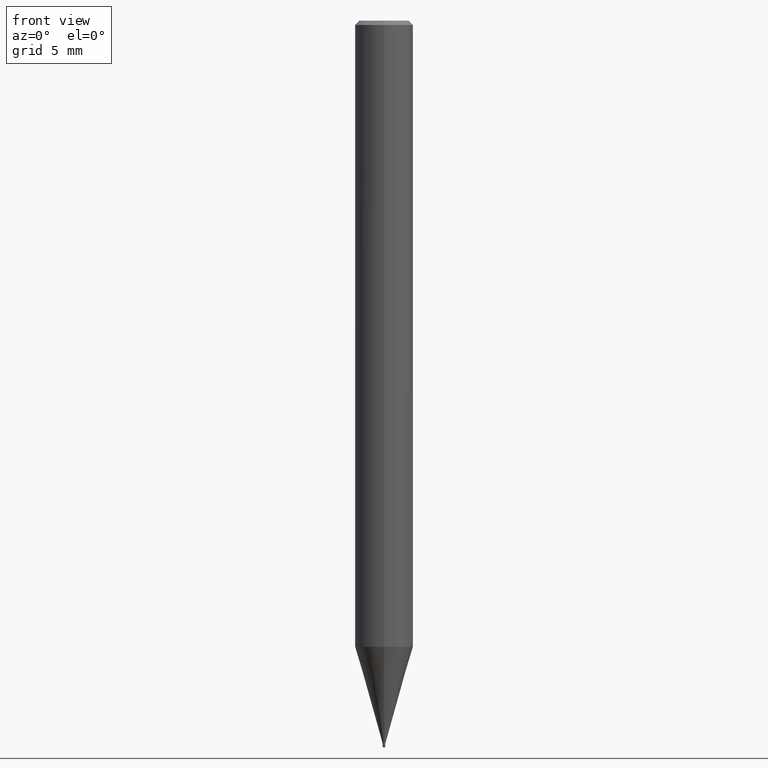
[diagram: clean part render]
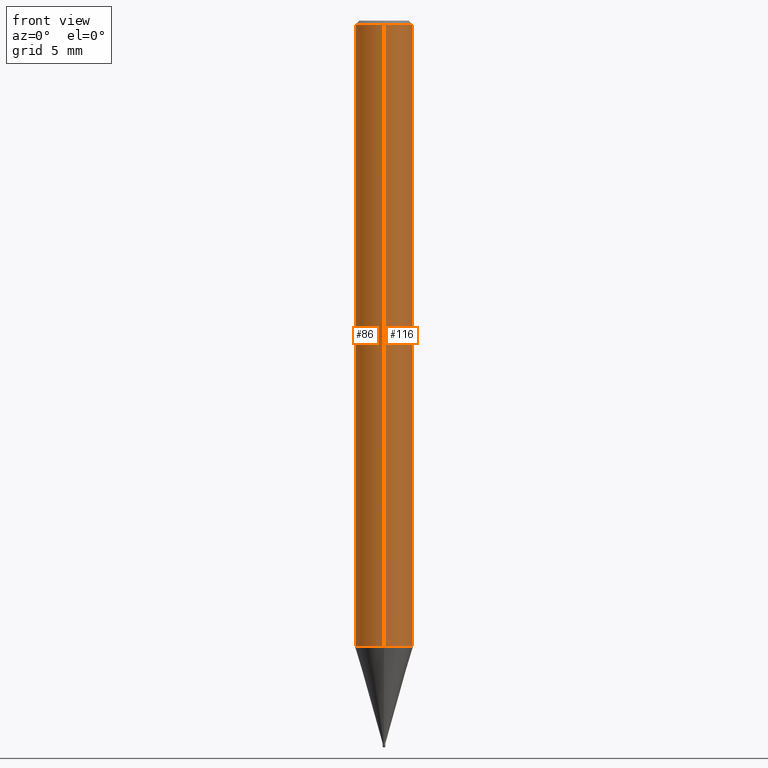
[diagram: same view with one multi-face feature highlighted, each face labeled with its STEP entity id]
A machine part, front view. The highlighted faces form ONE feature: a constant-radius fillet chain: 2 tangent blend faces with common blend radius 2 mm. The faces share edges in the B-rep.
Their STEP definitions:
[1] entity #116 (Cylinder):
#92=VERTEX_POINT('',#219);
#116=ADVANCED_FACE('',(#244),#245,.T.);
#124=EDGE_CURVE('',#92,#152,#254,.T.);
#148=EDGE_CURVE('',#152,#176,#283,.T.);
#152=VERTEX_POINT('',#287);
#156=EDGE_CURVE('',#168,#92,#291,.T.);
#168=VERTEX_POINT('',#305);
#170=EDGE_CURVE('',#168,#176,#307,.T.);
#176=VERTEX_POINT('',#315);
#219=CARTESIAN_POINT('',(0.0,2.0,-43.074));
#244=FACE_OUTER_BOUND('',#385,.T.);
#245=CYLINDRICAL_SURFACE('',#386,2.0);
#254=CIRCLE('',#398,2.0);
#283=LINE('',#433,#434);
#287=CARTESIAN_POINT('',(2.44921270764475E-016,-2.0,-43.074));
#291=LINE('',#446,#447);
#305=CARTESIAN_POINT('',(0.0,2.0,-0.299999999999997));
#307=CIRCLE('',#467,2.0);
#315=CARTESIAN_POINT('',(2.44921270764475E-016,-2.0,-0.299999999999997));
#385=EDGE_LOOP('',(#533,#534,#535,#536));
#386=AXIS2_PLACEMENT_3D('',#537,#538,#539);
#398=AXIS2_PLACEMENT_3D('',#549,#550,#551);
#433=CARTESIAN_POINT('',(2.44921270764475E-016,-2.0,-21.687));
#434=VECTOR('',#593,1.0);
#446=CARTESIAN_POINT('',(-2.44921270764475E-016,2.0,-21.687));
#447=VECTOR('',#598,1.0);
#467=AXIS2_PLACEMENT_3D('',#622,#623,#624);
#533=ORIENTED_EDGE('',*,*,#156,.F.);
#534=ORIENTED_EDGE('',*,*,#170,.T.);
#535=ORIENTED_EDGE('',*,*,#148,.F.);
#536=ORIENTED_EDGE('',*,*,#124,.F.);
#537=CARTESIAN_POINT('',(0.0,0.0,-21.687));
#538=DIRECTION('',(-0.0,-0.0,1.0));
#539=DIRECTION('',(0.0,1.0,0.0));
#549=CARTESIAN_POINT('',(0.0,0.0,-43.074));
#550=DIRECTION('',(0.0,0.0,-1.0));
#551=DIRECTION('',(0.0,1.0,0.0));
#593=DIRECTION('',(-0.0,-0.0,1.0));
#598=DIRECTION('',(0.0,0.0,-1.0));
#622=CARTESIAN_POINT('',(0.0,0.0,-0.299999999999997));
#623=DIRECTION('',(0.0,0.0,-1.0));
#624=DIRECTION('',(0.0,1.0,0.0));
[2] entity #86 (Cylinder):
#86=ADVANCED_FACE('',(#211),#212,.T.);
#92=VERTEX_POINT('',#219);
#100=EDGE_CURVE('',#152,#92,#228,.T.);
#148=EDGE_CURVE('',#152,#176,#283,.T.);
#152=VERTEX_POINT('',#287);
#156=EDGE_CURVE('',#168,#92,#291,.T.);
#168=VERTEX_POINT('',#305);
#176=VERTEX_POINT('',#315);
#180=EDGE_CURVE('',#176,#168,#320,.T.);
#211=FACE_OUTER_BOUND('',#343,.T.);
#212=CYLINDRICAL_SURFACE('',#344,2.0);
#219=CARTESIAN_POINT('',(0.0,2.0,-43.074));
#228=CIRCLE('',#362,2.0);
#283=LINE('',#433,#434);
#287=CARTESIAN_POINT('',(2.44921270764475E-016,-2.0,-43.074));
#291=LINE('',#446,#447);
#305=CARTESIAN_POINT('',(0.0,2.0,-0.299999999999997));
#315=CARTESIAN_POINT('',(2.44921270764475E-016,-2.0,-0.299999999999997));
#320=CIRCLE('',#482,2.0);
#343=EDGE_LOOP('',(#494,#495,#496,#497));
#344=AXIS2_PLACEMENT_3D('',#498,#499,#500);
#362=AXIS2_PLACEMENT_3D('',#518,#519,#520);
#433=CARTESIAN_POINT('',(2.44921270764475E-016,-2.0,-21.687));
#434=VECTOR('',#593,1.0);
#446=CARTESIAN_POINT('',(-2.44921270764475E-016,2.0,-21.687));
#447=VECTOR('',#598,1.0);
#482=AXIS2_PLACEMENT_3D('',#642,#643,#644);
#494=ORIENTED_EDGE('',*,*,#156,.T.);
#495=ORIENTED_EDGE('',*,*,#100,.F.);
#496=ORIENTED_EDGE('',*,*,#148,.T.);
#497=ORIENTED_EDGE('',*,*,#180,.T.);
#498=CARTESIAN_POINT('',(0.0,0.0,-21.687));
#499=DIRECTION('',(-0.0,-0.0,1.0));
#500=DIRECTION('',(0.0,1.0,0.0));
#518=CARTESIAN_POINT('',(0.0,0.0,-43.074));
#519=DIRECTION('',(0.0,0.0,-1.0));
#520=DIRECTION('',(0.0,1.0,0.0));
#593=DIRECTION('',(-0.0,-0.0,1.0));
#598=DIRECTION('',(0.0,0.0,-1.0));
#642=CARTESIAN_POINT('',(0.0,0.0,-0.299999999999997));
#643=DIRECTION('',(0.0,0.0,-1.0));
#644=DIRECTION('',(0.0,1.0,0.0));